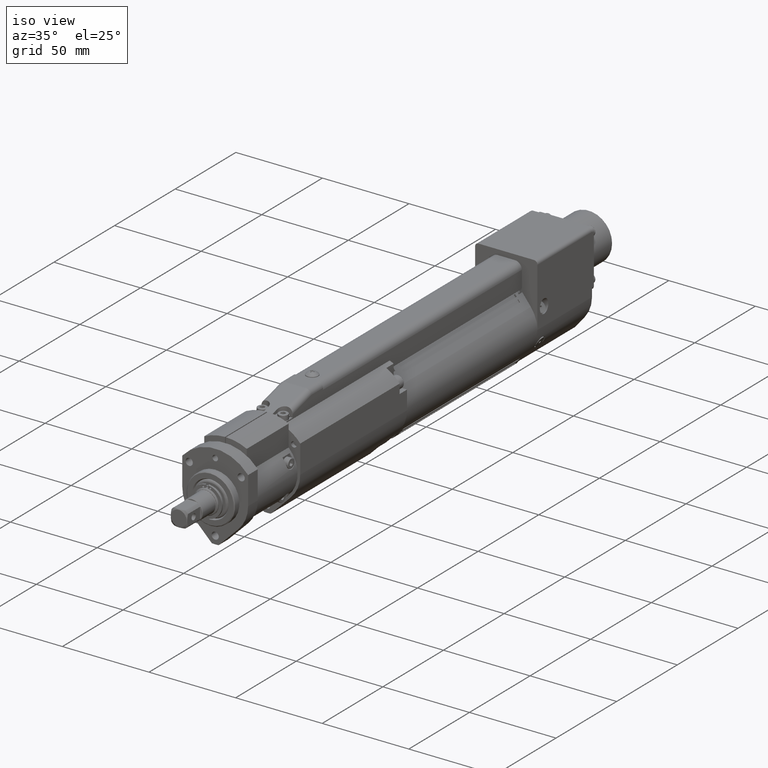
[diagram: clean part render]
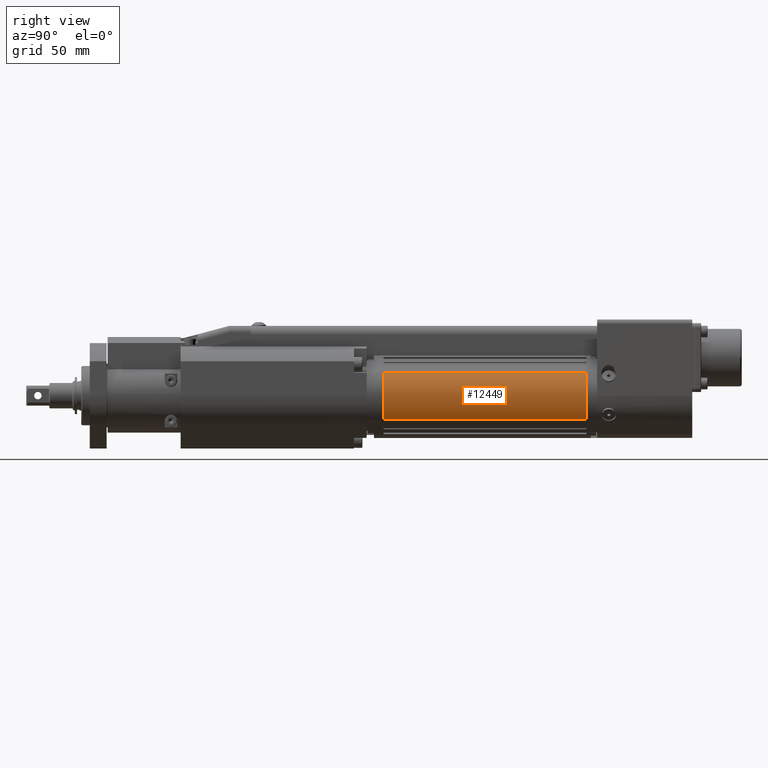
[diagram: tour spotlight — one face highlighted and labeled with its STEP entity id]
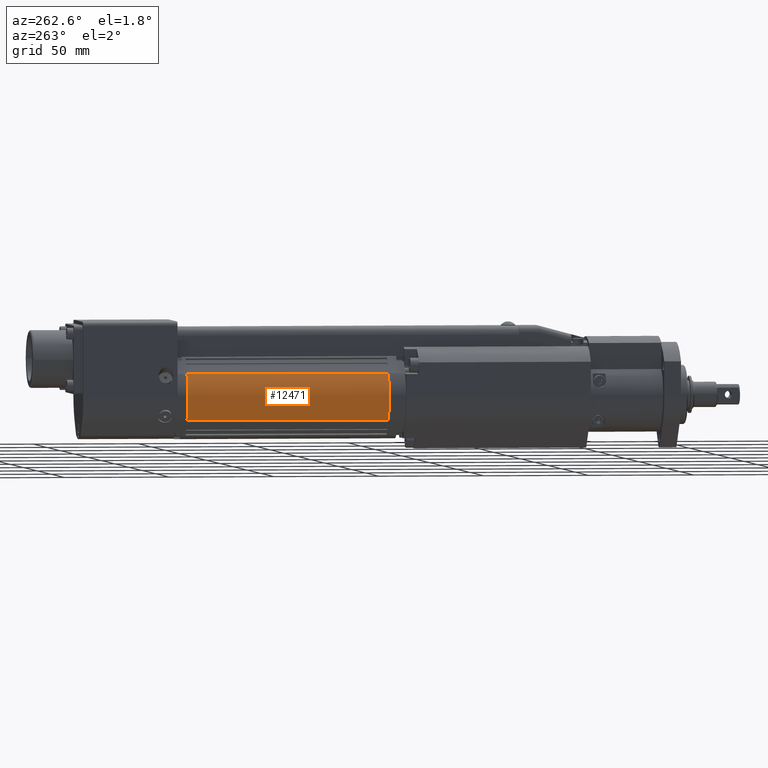
[diagram: tour spotlight — one face highlighted and labeled with its STEP entity id]
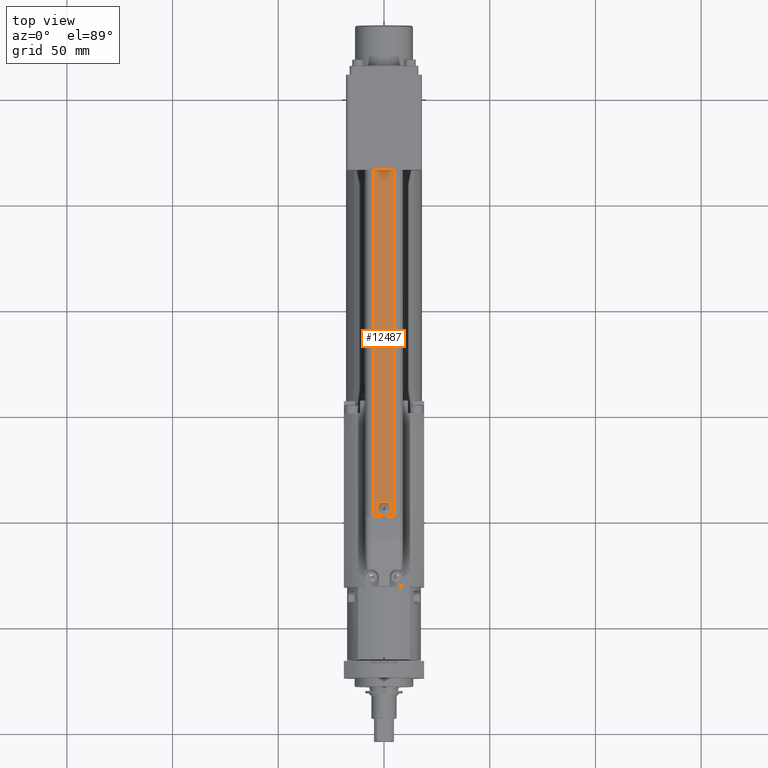
[diagram: tour spotlight — one face highlighted and labeled with its STEP entity id]
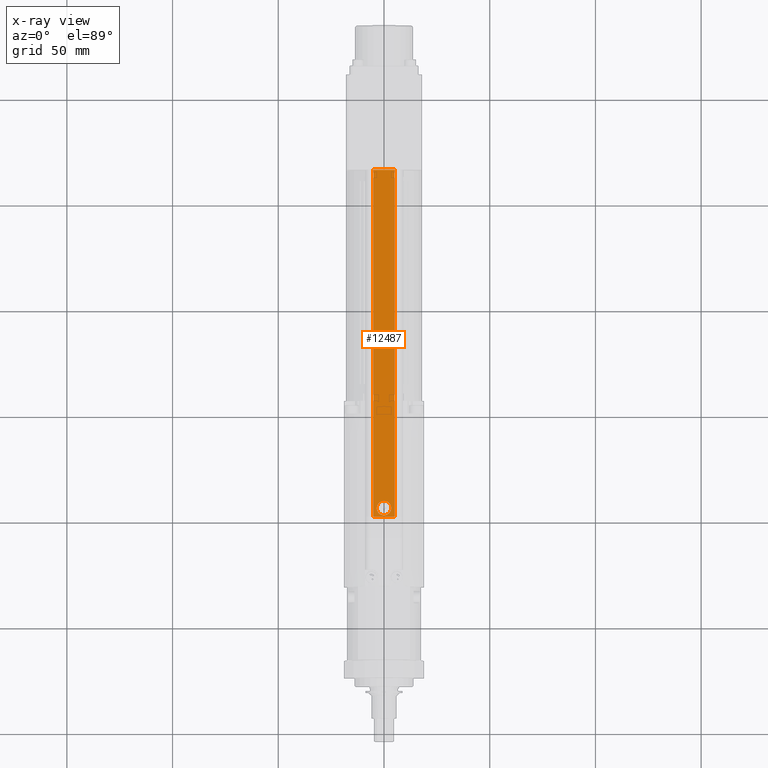
[diagram: x-ray of the same camera — body ghosted, this tour face saturated]
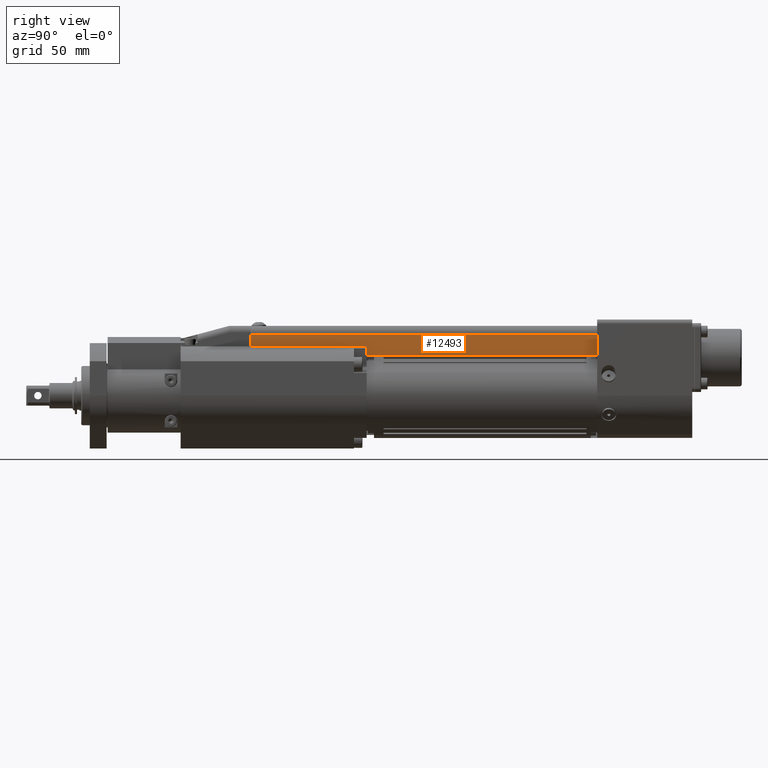
[diagram: tour spotlight — one face highlighted and labeled with its STEP entity id]
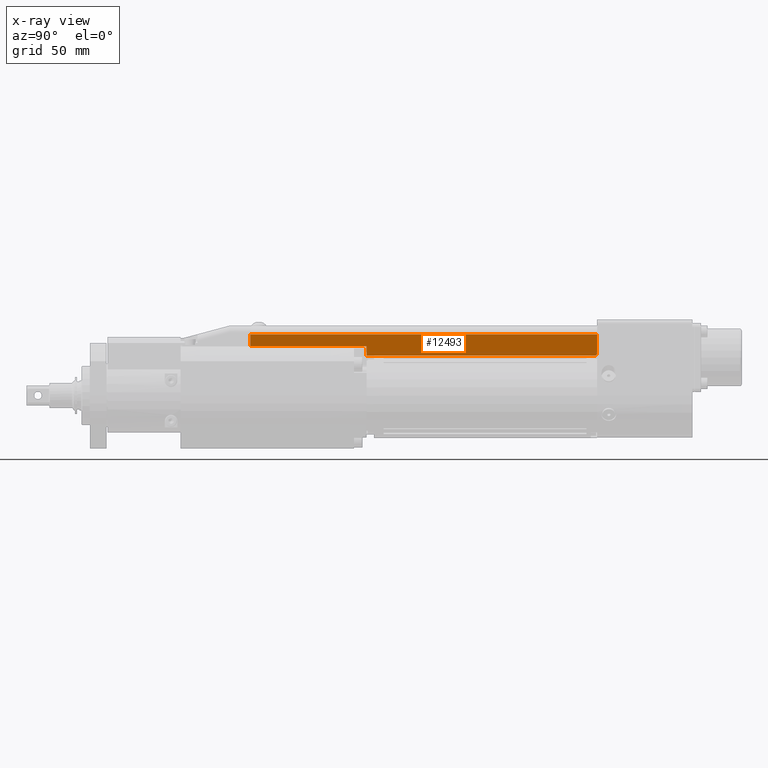
[diagram: x-ray of the same camera — body ghosted, this tour face saturated]
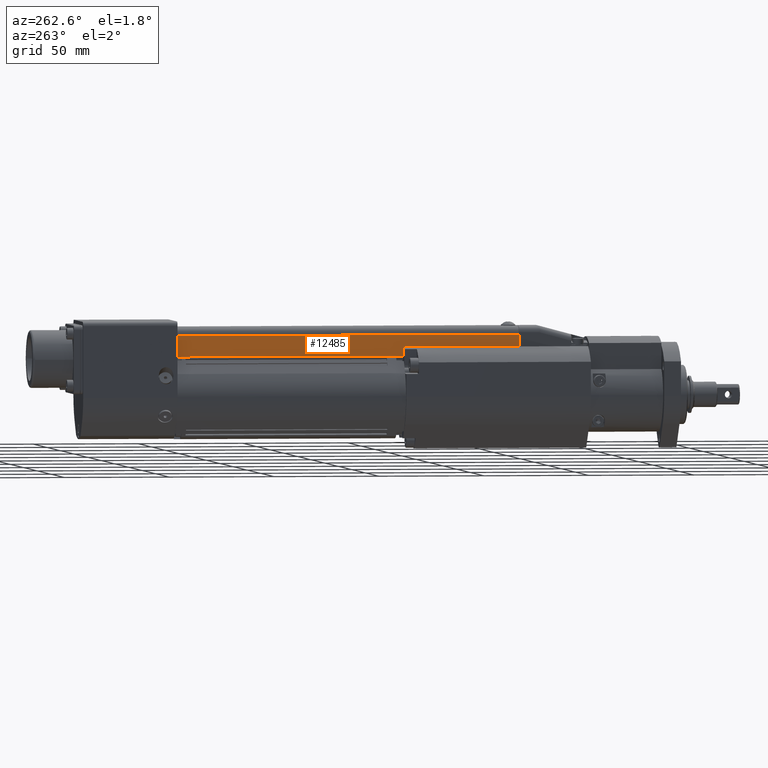
[diagram: tour spotlight — one face highlighted and labeled with its STEP entity id]
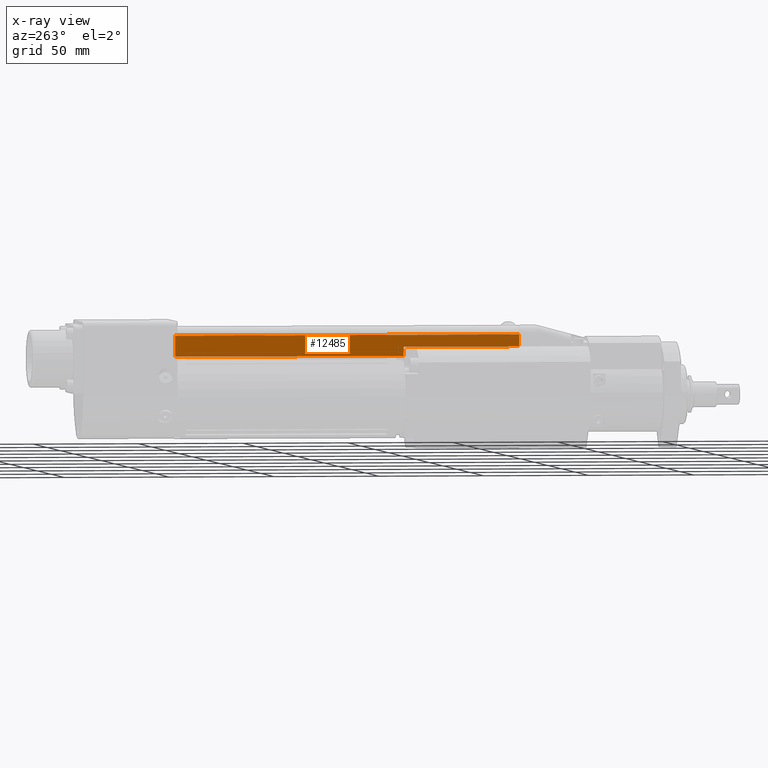
[diagram: x-ray of the same camera — body ghosted, this tour face saturated]
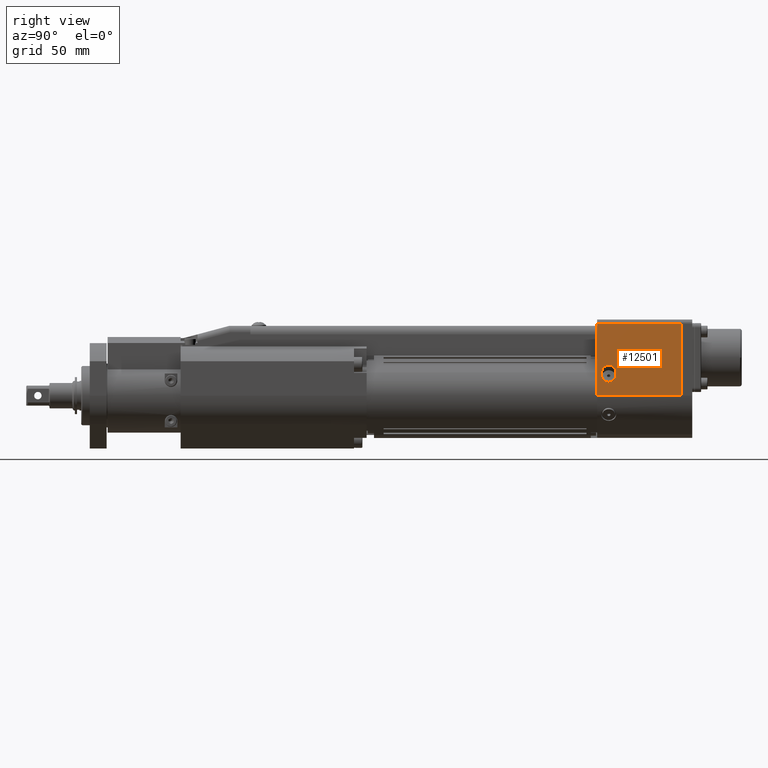
[diagram: tour spotlight — one face highlighted and labeled with its STEP entity id]
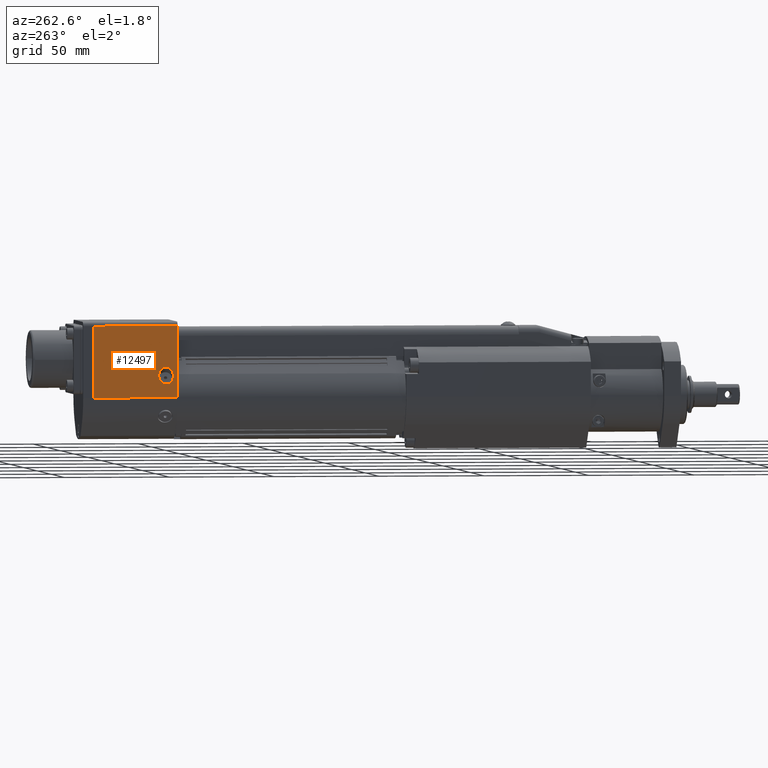
[diagram: tour spotlight — one face highlighted and labeled with its STEP entity id]
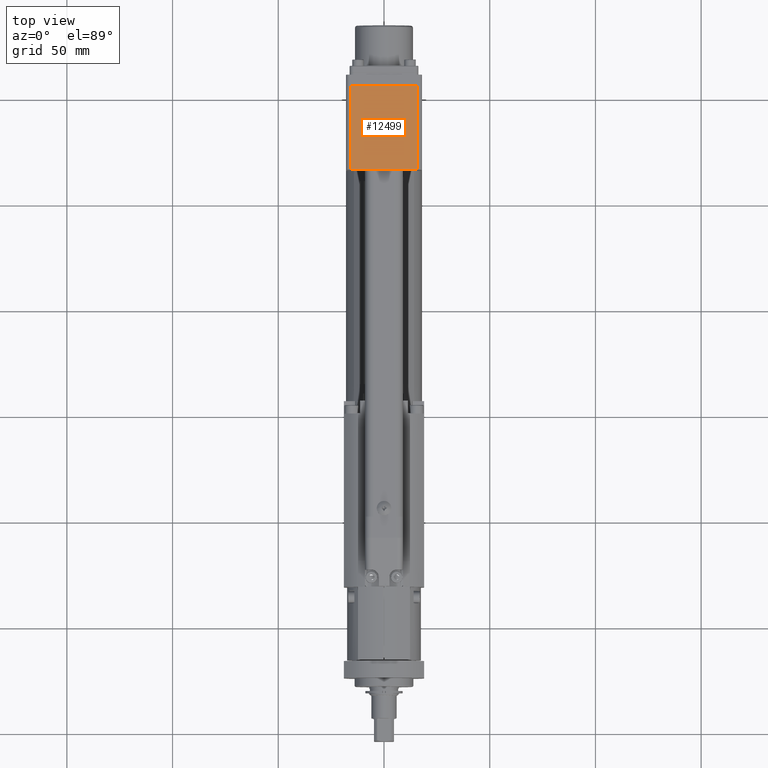
[diagram: tour spotlight — one face highlighted and labeled with its STEP entity id]
A machine part: a face-by-face anatomy tour. The part has 700 B-rep faces; the first image is the clean iso view, then the 8 largest visible faces are spotlighted one at a time (largest first), each with its STEP entity span.

Face 1 — right view, entity #12449. In plain terms, the highlighted cylindrical surface (partial cylindrical patch) has radius 18 mm, axis along (0, 1, -0).
Definition (entity closure, byte-faithful):
#336=CYLINDRICAL_SURFACE('',#13445,17.9999999999914);
#843=FACE_OUTER_BOUND('',#1576,.T.);
#1576=EDGE_LOOP('',(#9147,#9148,#9149,#9150));
#2268=CIRCLE('',#13325,17.9999999999914);
#2299=CIRCLE('',#13409,17.9999999999982);
#3144=LINE('',#20382,#4200);
#3145=LINE('',#20384,#4201);
#4200=VECTOR('',#15842,10.);
#4201=VECTOR('',#15845,10.);
#5202=VERTEX_POINT('',#19986);
#5203=VERTEX_POINT('',#19987);
#5291=VERTEX_POINT('',#20269);
#5296=VERTEX_POINT('',#20282);
#6532=EDGE_CURVE('',#5202,#5203,#2268,.T.);
#6682=EDGE_CURVE('',#5291,#5296,#2299,.T.);
#6730=EDGE_CURVE('',#5291,#5202,#3144,.T.);
#6731=EDGE_CURVE('',#5296,#5203,#3145,.T.);
#9147=ORIENTED_EDGE('',*,*,#6682,.T.);
#9148=ORIENTED_EDGE('',*,*,#6731,.T.);
#9149=ORIENTED_EDGE('',*,*,#6532,.F.);
#9150=ORIENTED_EDGE('',*,*,#6730,.F.);
#12449=ADVANCED_FACE('',(#843),#336,.T.);
#13325=AXIS2_PLACEMENT_3D('',#19988,#15444,#15445);
#13409=AXIS2_PLACEMENT_3D('',#20284,#15731,#15732);
#13445=AXIS2_PLACEMENT_3D('',#20383,#15843,#15844);
#15444=DIRECTION('center_axis',(7.20020279707599E-16,1.,-2.84049013948918E-16));
#15445=DIRECTION('ref_axis',(0.788010753606748,-3.92505688231946E-16,0.615661475325625));
#15731=DIRECTION('center_axis',(7.20020279707599E-16,1.,-2.84049013948918E-16));
#15732=DIRECTION('ref_axis',(0.788010753606715,-3.9250568823191E-16,0.615661475325668));
#15842=DIRECTION('',(7.20020279707599E-16,1.,-2.84049013948918E-16));
#15843=DIRECTION('center_axis',(7.20020279707599E-16,1.,-2.84049013948918E-16));
#15844=DIRECTION('ref_axis',(0.788010753606748,-3.92505688231946E-16,0.615661475325625));
#15845=DIRECTION('',(7.20020279707599E-16,1.,-2.84049013948918E-16));
#19986=CARTESIAN_POINT('',(14.1841935649172,161.,11.0819065558524));
#19987=CARTESIAN_POINT('',(14.1841935649168,161.,-11.0819065558601));
#19988=CARTESIAN_POINT('Origin',(2.47234526998345E-12,161.,-3.60433465971635E-12));
#20269=CARTESIAN_POINT('',(14.1841935647525,64.9999999999999,11.081906556253));
#20282=CARTESIAN_POINT('',(14.1841935647498,64.9999999999999,-11.0819065554722));
#20284=CARTESIAN_POINT('Origin',(-1.66936874176896E-10,64.9999999999999,
3.92119742698324E-10));
#20382=CARTESIAN_POINT('',(14.1841935649171,64.9999999999999,11.0819065558524));
#20383=CARTESIAN_POINT('Origin',(2.40322332313152E-12,64.9999999999999,
-3.57706595437725E-12));
#20384=CARTESIAN_POINT('',(14.1841935649167,64.9999999999999,-11.08190655586));

Face 2 — auxiliary view, entity #12471. In plain terms, the highlighted cylindrical surface (partial cylindrical patch) has radius 18 mm, axis along (0, 1, -0).
Definition (entity closure, byte-faithful):
#340=CYLINDRICAL_SURFACE('',#13467,17.9999999999982);
#865=FACE_OUTER_BOUND('',#1598,.T.);
#1598=EDGE_LOOP('',(#9235,#9236,#9237,#9238));
#2277=CIRCLE('',#13338,17.9999999999982);
#2297=CIRCLE('',#13399,17.9999999999914);
#3166=LINE('',#20426,#4222);
#3167=LINE('',#20428,#4223);
#4222=VECTOR('',#15908,10.);
#4223=VECTOR('',#15911,10.);
#5223=VERTEX_POINT('',#20035);
#5224=VERTEX_POINT('',#20036);
#5277=VERTEX_POINT('',#20225);
#5284=VERTEX_POINT('',#20241);
#6556=EDGE_CURVE('',#5223,#5224,#2277,.T.);
#6661=EDGE_CURVE('',#5277,#5284,#2297,.T.);
#6752=EDGE_CURVE('',#5277,#5223,#3166,.T.);
#6753=EDGE_CURVE('',#5284,#5224,#3167,.T.);
#9235=ORIENTED_EDGE('',*,*,#6661,.T.);
#9236=ORIENTED_EDGE('',*,*,#6753,.T.);
#9237=ORIENTED_EDGE('',*,*,#6556,.F.);
#9238=ORIENTED_EDGE('',*,*,#6752,.F.);
#12471=ADVANCED_FACE('',(#865),#340,.T.);
#13338=AXIS2_PLACEMENT_3D('',#20037,#15485,#15486);
#13399=AXIS2_PLACEMENT_3D('',#20243,#15692,#15693);
#13467=AXIS2_PLACEMENT_3D('',#20427,#15909,#15910);
#15485=DIRECTION('center_axis',(7.20020279707599E-16,1.,-2.84049013948918E-16));
#15486=DIRECTION('ref_axis',(-0.788010753606715,3.92505688231911E-16,-0.615661475325667));
#15692=DIRECTION('center_axis',(7.20020279707599E-16,1.,-2.84049013948918E-16));
#15693=DIRECTION('ref_axis',(-0.788010753606735,3.92505688231932E-16,-0.615661475325642));
#15908=DIRECTION('',(7.20020279707599E-16,1.,-2.84049013948918E-16));
#15909=DIRECTION('center_axis',(7.20020279707599E-16,1.,-2.84049013948918E-16));
#15910=DIRECTION('ref_axis',(-0.788010753606715,3.92505688231911E-16,-0.615661475325667));
#15911=DIRECTION('',(7.20020279707599E-16,1.,-2.84049013948918E-16));
#20035=CARTESIAN_POINT('',(-14.1841935649277,161.,-11.0819065558611));
#20036=CARTESIAN_POINT('',(-14.184193564925,161.,11.0819065558641));
#20037=CARTESIAN_POINT('Origin',(-8.22576379530456E-12,161.,-1.84847743870887E-13));
#20225=CARTESIAN_POINT('',(-14.1841935650919,64.9999999999999,-11.0819065554604));
#20241=CARTESIAN_POINT('',(-14.1841935650919,64.9999999999999,11.081906556252));
#20243=CARTESIAN_POINT('Origin',(-1.77417379529357E-10,64.9999999999999,
3.95823446708473E-10));
#20426=CARTESIAN_POINT('',(-14.1841935649277,64.9999999999999,-11.081906555861));
#20427=CARTESIAN_POINT('Origin',(-8.29488574215649E-12,64.9999999999999,
-1.57579038531793E-13));
#20428=CARTESIAN_POINT('',(-14.1841935649251,64.9999999999999,11.0819065558641));

Face 3 — top view, entity #12487. An x-ray twin of the same camera follows (body ghosted, this face saturated) — the face is partly hidden behind the body. In plain terms, the highlighted planar face has unit normal (-0, 0, 1).
Definition (entity closure, byte-faithful):
#480=FACE_BOUND('',#1615,.T.);
#881=FACE_OUTER_BOUND('',#1614,.T.);
#1614=EDGE_LOOP('',(#9304,#9305,#9306,#9307));
#1615=EDGE_LOOP('',(#9308));
#2194=CIRCLE('',#13126,3.45);
#2714=LINE('',#18314,#3770);
#3181=LINE('',#20461,#4237);
#3182=LINE('',#20464,#4238);
#3183=LINE('',#20465,#4239);
#3770=VECTOR('',#14558,10.);
#4237=VECTOR('',#15957,10.);
#4238=VECTOR('',#15960,10.);
#4239=VECTOR('',#15961,10.);
#4899=VERTEX_POINT('',#18311);
#4900=VERTEX_POINT('',#18313);
#5028=VERTEX_POINT('',#19287);
#5322=VERTEX_POINT('',#20459);
#5323=VERTEX_POINT('',#20463);
#6062=EDGE_CURVE('',#4899,#4900,#2714,.T.);
#6244=EDGE_CURVE('',#5028,#5028,#2194,.T.);
#6768=EDGE_CURVE('',#5322,#4899,#3181,.T.);
#6769=EDGE_CURVE('',#5322,#5323,#3182,.T.);
#6770=EDGE_CURVE('',#5323,#4900,#3183,.T.);
#9304=ORIENTED_EDGE('',*,*,#6769,.T.);
#9305=ORIENTED_EDGE('',*,*,#6770,.T.);
#9306=ORIENTED_EDGE('',*,*,#6062,.F.);
#9307=ORIENTED_EDGE('',*,*,#6768,.F.);
#9308=ORIENTED_EDGE('',*,*,#6244,.T.);
#11239=PLANE('',#13484);
#12487=ADVANCED_FACE('',(#881,#480),#11239,.T.);
#13126=AXIS2_PLACEMENT_3D('',#19288,#14857,#14858);
#13484=AXIS2_PLACEMENT_3D('',#20462,#15958,#15959);
#14558=DIRECTION('',(1.,-6.89986709772563E-16,4.33873497871556E-30));
#14857=DIRECTION('center_axis',(1.77493703674728E-30,-3.98999394435586E-15,
-1.));
#14858=DIRECTION('ref_axis',(1.,-6.14759817044665E-16,2.01835602244937E-30));
#15957=DIRECTION('',(6.89986709772563E-16,1.,-3.98999394435586E-15));
#15958=DIRECTION('center_axis',(-1.77493703674728E-30,3.98999394435586E-15,
1.));
#15959=DIRECTION('ref_axis',(1.,-6.89986709772563E-16,4.33873497871556E-30));
#15960=DIRECTION('',(1.,-6.89986709772563E-16,4.33873497871556E-30));
#15961=DIRECTION('',(6.89986709772563E-16,1.,-3.98999394435586E-15));
#18311=CARTESIAN_POINT('',(-5.00000000000007,166.,32.9999999999993));
#18313=CARTESIAN_POINT('',(4.99999999999993,166.,32.9999999999993));
#18314=CARTESIAN_POINT('',(-5.00000000000007,166.,32.9999999999993));
#19287=CARTESIAN_POINT('',(-3.45000000000024,5.99999999999994,32.9999999999999));
#19288=CARTESIAN_POINT('Origin',(-2.36738561693249E-13,5.99999999999994,
33.));
#20459=CARTESIAN_POINT('',(-5.00000000000018,1.99999999999994,33.));
#20461=CARTESIAN_POINT('',(-5.00000000000018,1.99999999999994,33.));
#20462=CARTESIAN_POINT('Origin',(-5.00000000000018,1.99999999999994,33.));
#20463=CARTESIAN_POINT('',(4.99999999999982,1.99999999999994,33.));
#20464=CARTESIAN_POINT('',(-5.00000000000018,1.99999999999994,33.));
#20465=CARTESIAN_POINT('',(4.99999999999982,1.99999999999994,33.));

Face 4 — right view, entity #12493. An x-ray twin of the same camera follows (body ghosted, this face saturated) — the face is partly hidden behind the body. In plain terms, the highlighted planar face has unit normal (1, -0, 0).
Definition (entity closure, byte-faithful):
#887=FACE_OUTER_BOUND('',#1621,.T.);
#1621=EDGE_LOOP('',(#9329,#9330,#9331,#9332,#9333,#9334,#9335,#9336));
#2560=LINE('',#17626,#3616);
#2715=LINE('',#18318,#3771);
#2950=LINE('',#19898,#4006);
#2964=LINE('',#19924,#4020);
#3184=LINE('',#20469,#4240);
#3187=LINE('',#20477,#4243);
#3189=LINE('',#20480,#4245);
#3191=LINE('',#20483,#4247);
#3616=VECTOR('',#14120,10.);
#3771=VECTOR('',#14561,10.);
#4006=VECTOR('',#15340,10.);
#4020=VECTOR('',#15368,10.);
#4240=VECTOR('',#15966,10.);
#4243=VECTOR('',#15975,10.);
#4245=VECTOR('',#15979,10.);
#4247=VECTOR('',#15983,10.);
#4680=VERTEX_POINT('',#17623);
#4681=VERTEX_POINT('',#17625);
#4901=VERTEX_POINT('',#18315);
#4902=VERTEX_POINT('',#18317);
#5182=VERTEX_POINT('',#19895);
#5183=VERTEX_POINT('',#19897);
#5324=VERTEX_POINT('',#20467);
#5325=VERTEX_POINT('',#20474);
#5802=EDGE_CURVE('',#4681,#4680,#2560,.T.);
#6064=EDGE_CURVE('',#4901,#4902,#2715,.T.);
#6485=EDGE_CURVE('',#5183,#5182,#2950,.T.);
#6500=EDGE_CURVE('',#4681,#5182,#2964,.T.);
#6772=EDGE_CURVE('',#5324,#4901,#3184,.T.);
#6775=EDGE_CURVE('',#4680,#5325,#3187,.T.);
#6777=EDGE_CURVE('',#4902,#5325,#3189,.T.);
#6779=EDGE_CURVE('',#5324,#5183,#3191,.T.);
#9329=ORIENTED_EDGE('',*,*,#6485,.T.);
#9330=ORIENTED_EDGE('',*,*,#6500,.F.);
#9331=ORIENTED_EDGE('',*,*,#5802,.T.);
#9332=ORIENTED_EDGE('',*,*,#6775,.T.);
#9333=ORIENTED_EDGE('',*,*,#6777,.F.);
#9334=ORIENTED_EDGE('',*,*,#6064,.F.);
#9335=ORIENTED_EDGE('',*,*,#6772,.F.);
#9336=ORIENTED_EDGE('',*,*,#6779,.T.);
#11244=PLANE('',#13491);
#12493=ADVANCED_FACE('',(#887),#11244,.T.);
#13491=AXIS2_PLACEMENT_3D('',#20482,#15981,#15982);
#14120=DIRECTION('',(1.986570399457E-15,-2.84049013948923E-16,-1.));
#14561=DIRECTION('',(1.8735446498999E-30,-3.98999394435586E-15,-1.));
#15340=DIRECTION('',(7.21644966006352E-16,1.,-2.84049013948921E-16));
#15368=DIRECTION('',(-7.21644966006352E-16,-1.,2.84049013948921E-16));
#15966=DIRECTION('',(6.89986709772563E-16,1.,-3.98999394435586E-15));
#15975=DIRECTION('',(6.89986709772563E-16,1.,-3.98999394435586E-15));
#15979=DIRECTION('',(-4.87894281408776E-16,-0.707106781186555,-0.70710678118654));
#15981=DIRECTION('center_axis',(1.,-6.89986709772563E-16,4.43734259186819E-30));
#15982=DIRECTION('ref_axis',(1.8735446498999E-30,-3.98999394435586E-15,
-1.));
#15983=DIRECTION('',(1.8735446498999E-30,-3.98999394435586E-15,-1.));
#17623=CARTESIAN_POINT('',(8.99999999999986,56.9999999999999,18.9999999999998));
#17625=CARTESIAN_POINT('',(8.99999999999992,57.,23.3238075793813));
#17626=CARTESIAN_POINT('',(8.99999999999992,57.,23.3238075793813));
#18315=CARTESIAN_POINT('',(8.99999999999993,166.,28.9999999999993));
#18317=CARTESIAN_POINT('',(8.99999999999993,166.,19.4999999999993));
#18318=CARTESIAN_POINT('',(8.99999999999993,166.,28.9999999999993));
#19895=CARTESIAN_POINT('',(9.00000000000002,40.,23.3238075793812));
#19897=CARTESIAN_POINT('',(8.99999999999982,1.99999999999989,23.3238075793813));
#19898=CARTESIAN_POINT('',(9.,1.30299850400445E-16,23.3238075793812));
#19924=CARTESIAN_POINT('',(8.99999999999992,57.,23.3238075793813));
#20467=CARTESIAN_POINT('',(8.99999999999982,1.99999999999992,29.));
#20469=CARTESIAN_POINT('',(8.99999999999982,1.99999999999992,29.));
#20474=CARTESIAN_POINT('',(8.99999999999993,165.5,18.9999999999993));
#20477=CARTESIAN_POINT('',(8.99999999999982,1.99999999999988,19.));
#20480=CARTESIAN_POINT('',(8.99999999999991,127.249999999999,-19.2500000000006));
#20482=CARTESIAN_POINT('Origin',(8.99999999999982,1.99999999999992,29.));
#20483=CARTESIAN_POINT('',(8.99999999999982,1.99999999999992,29.));

Face 5 — auxiliary view, entity #12485. An x-ray twin of the same camera follows (body ghosted, this face saturated) — the face is partly hidden behind the body. In plain terms, the highlighted planar face has unit normal (-1, 0, -0).
Definition (entity closure, byte-faithful):
#879=FACE_OUTER_BOUND('',#1612,.T.);
#1612=EDGE_LOOP('',(#9292,#9293,#9294,#9295,#9296,#9297,#9298,#9299));
#2713=LINE('',#18310,#3769);
#2733=LINE('',#18373,#3789);
#2948=LINE('',#19887,#4004);
#2981=LINE('',#19968,#4037);
#3177=LINE('',#20453,#4233);
#3178=LINE('',#20454,#4234);
#3179=LINE('',#20456,#4235);
#3180=LINE('',#20457,#4236);
#3769=VECTOR('',#14555,10.);
#3789=VECTOR('',#14607,10.);
#4004=VECTOR('',#15330,10.);
#4037=VECTOR('',#15421,10.);
#4233=VECTOR('',#15949,10.);
#4234=VECTOR('',#15950,10.);
#4235=VECTOR('',#15951,10.);
#4236=VECTOR('',#15952,10.);
#4897=VERTEX_POINT('',#18307);
#4898=VERTEX_POINT('',#18309);
#4924=VERTEX_POINT('',#18370);
#4925=VERTEX_POINT('',#18372);
#5177=VERTEX_POINT('',#19884);
#5178=VERTEX_POINT('',#19886);
#5320=VERTEX_POINT('',#20452);
#5321=VERTEX_POINT('',#20455);
#6060=EDGE_CURVE('',#4897,#4898,#2713,.T.);
#6092=EDGE_CURVE('',#4924,#4925,#2733,.T.);
#6480=EDGE_CURVE('',#5177,#5178,#2948,.T.);
#6523=EDGE_CURVE('',#4924,#5178,#2981,.T.);
#6763=EDGE_CURVE('',#5177,#5320,#3177,.T.);
#6764=EDGE_CURVE('',#5320,#4898,#3178,.T.);
#6765=EDGE_CURVE('',#5321,#4897,#3179,.T.);
#6766=EDGE_CURVE('',#4925,#5321,#3180,.T.);
#9292=ORIENTED_EDGE('',*,*,#6480,.F.);
#9293=ORIENTED_EDGE('',*,*,#6763,.T.);
#9294=ORIENTED_EDGE('',*,*,#6764,.T.);
#9295=ORIENTED_EDGE('',*,*,#6060,.F.);
#9296=ORIENTED_EDGE('',*,*,#6765,.F.);
#9297=ORIENTED_EDGE('',*,*,#6766,.F.);
#9298=ORIENTED_EDGE('',*,*,#6092,.F.);
#9299=ORIENTED_EDGE('',*,*,#6523,.T.);
#11238=PLANE('',#13481);
#12485=ADVANCED_FACE('',(#879),#11238,.T.);
#13481=AXIS2_PLACEMENT_3D('',#20451,#15947,#15948);
#14555=DIRECTION('',(-4.44089209850065E-16,3.98999394435586E-15,1.));
#14607=DIRECTION('',(4.44089209850067E-16,-2.84049013948922E-16,-1.));
#15330=DIRECTION('',(7.21644966006352E-16,1.,-2.84049013948921E-16));
#15421=DIRECTION('',(-7.21644966006352E-16,-1.,2.84049013948921E-16));
#15947=DIRECTION('center_axis',(-1.,6.89986709772561E-16,-4.44089209850067E-16));
#15948=DIRECTION('ref_axis',(-4.44089209850065E-16,3.98999394435586E-15,
1.));
#15949=DIRECTION('',(-4.44089209850065E-16,3.98999394435586E-15,1.));
#15950=DIRECTION('',(6.89986709772563E-16,1.,-3.98999394435586E-15));
#15951=DIRECTION('',(1.73875789672023E-16,0.707106781186555,0.70710678118654));
#15952=DIRECTION('',(6.89986709772563E-16,1.,-3.98999394435586E-15));
#18307=CARTESIAN_POINT('',(-9.00000000000006,166.,19.4999999999993));
#18309=CARTESIAN_POINT('',(-9.00000000000007,166.,28.9999999999993));
#18310=CARTESIAN_POINT('',(-9.00000000000006,166.,18.9999999999993));
#18370=CARTESIAN_POINT('',(-9.00000000000008,57.,23.3238075793813));
#18372=CARTESIAN_POINT('',(-9.00000000000014,56.9999999999999,18.9999999999998));
#18373=CARTESIAN_POINT('',(-9.00000000000014,57.,10.5082482056706));
#19884=CARTESIAN_POINT('',(-9.00000000000018,1.99999999999991,23.3238075793811));
#19886=CARTESIAN_POINT('',(-8.99999999999998,40.,23.3238075793812));
#19887=CARTESIAN_POINT('',(-9.00000000000001,1.31199092385148E-14,23.3238075793812));
#19968=CARTESIAN_POINT('',(-9.00000000000008,57.,23.3238075793813));
#20451=CARTESIAN_POINT('Origin',(-9.00000000000018,1.99999999999989,19.));
#20452=CARTESIAN_POINT('',(-9.00000000000018,1.99999999999993,29.));
#20453=CARTESIAN_POINT('',(-9.00000000000018,1.99999999999989,19.));
#20454=CARTESIAN_POINT('',(-9.00000000000018,1.99999999999993,29.));
#20455=CARTESIAN_POINT('',(-9.00000000000006,165.5,18.9999999999993));
#20456=CARTESIAN_POINT('',(-9.00000000000007,124.749999999999,-21.7500000000005));
#20457=CARTESIAN_POINT('',(-9.00000000000018,1.99999999999989,19.));

Face 6 — right view, entity #12501. In plain terms, the highlighted planar face has unit normal (1, -0, 0).
Definition (entity closure, byte-faithful):
#162=ELLIPSE('',#13506,4.04145188432738,3.5);
#482=FACE_BOUND('',#1631,.T.);
#895=FACE_OUTER_BOUND('',#1630,.T.);
#1630=EDGE_LOOP('',(#9366,#9367,#9368,#9369));
#1631=EDGE_LOOP('',(#9370));
#2721=LINE('',#18333,#3777);
#3199=LINE('',#20510,#4255);
#3200=LINE('',#20514,#4256);
#3201=LINE('',#20515,#4257);
#3777=VECTOR('',#14571,10.);
#4255=VECTOR('',#16015,10.);
#4256=VECTOR('',#16020,10.);
#4257=VECTOR('',#16021,10.);
#4908=VERTEX_POINT('',#18330);
#4909=VERTEX_POINT('',#18332);
#5333=VERTEX_POINT('',#20509);
#5334=VERTEX_POINT('',#20513);
#5335=VERTEX_POINT('',#20516);
#6072=EDGE_CURVE('',#4908,#4909,#2721,.T.);
#6792=EDGE_CURVE('',#4909,#5333,#3199,.T.);
#6794=EDGE_CURVE('',#4908,#5334,#3200,.T.);
#6795=EDGE_CURVE('',#5333,#5334,#3201,.T.);
#6796=EDGE_CURVE('',#5335,#5335,#162,.T.);
#9366=ORIENTED_EDGE('',*,*,#6072,.F.);
#9367=ORIENTED_EDGE('',*,*,#6794,.T.);
#9368=ORIENTED_EDGE('',*,*,#6795,.F.);
#9369=ORIENTED_EDGE('',*,*,#6792,.F.);
#9370=ORIENTED_EDGE('',*,*,#6796,.T.);
#11250=PLANE('',#13505);
#12501=ADVANCED_FACE('',(#895,#482),#11250,.T.);
#13505=AXIS2_PLACEMENT_3D('',#20512,#16018,#16019);
#13506=AXIS2_PLACEMENT_3D('',#20517,#16022,#16023);
#14571=DIRECTION('',(-1.22464679914735E-16,2.8404901394892E-16,1.));
#16015=DIRECTION('',(6.89986709772563E-16,1.,-2.8404901394892E-16));
#16018=DIRECTION('center_axis',(1.,-6.89986709772563E-16,1.22464679914735E-16));
#16019=DIRECTION('ref_axis',(1.22464679914735E-16,-2.8404901394892E-16,
-1.));
#16020=DIRECTION('',(6.89986709772563E-16,1.,-2.8404901394892E-16));
#16021=DIRECTION('',(1.22464679914735E-16,-2.8404901394892E-16,-1.));
#16022=DIRECTION('center_axis',(-1.,6.89986709772563E-16,-1.22464679914735E-16));
#16023=DIRECTION('ref_axis',(1.22464679914735E-16,-2.8404901394892E-16,
-1.));
#18330=CARTESIAN_POINT('',(18.0000000000525,166.000000000003,5.67536601045388E-11));
#18332=CARTESIAN_POINT('',(18.0000000000525,166.000000000003,34.0000000000568));
#18333=CARTESIAN_POINT('',(18.0000000000525,166.000000000003,5.67536601045388E-11));
#20509=CARTESIAN_POINT('',(18.0000000000525,206.000000000003,34.0000000000567));
#20510=CARTESIAN_POINT('',(18.0000000000525,166.000000000003,34.0000000000568));
#20512=CARTESIAN_POINT('Origin',(18.0000000000525,166.000000000003,34.0000000000568));
#20513=CARTESIAN_POINT('',(18.0000000000525,206.000000000003,5.67422981439809E-11));
#20514=CARTESIAN_POINT('',(18.0000000000525,166.000000000003,5.67536601045388E-11));
#20515=CARTESIAN_POINT('',(18.0000000000525,206.000000000003,5.67422981439809E-11));
#20516=CARTESIAN_POINT('',(18.0000000000525,171.500000000003,14.4337567298499));
#20517=CARTESIAN_POINT('Origin',(18.0000000000525,171.500000000003,10.3923048455225));

Face 7 — auxiliary view, entity #12497. In plain terms, the highlighted planar face has unit normal (-1, 0, -0).
Definition (entity closure, byte-faithful):
#161=ELLIPSE('',#13499,4.04145188432738,3.5);
#481=FACE_BOUND('',#1626,.T.);
#891=FACE_OUTER_BOUND('',#1625,.T.);
#1625=EDGE_LOOP('',(#9349,#9350,#9351,#9352));
#1626=EDGE_LOOP('',(#9353));
#2723=LINE('',#18341,#3779);
#3193=LINE('',#20494,#4249);
#3194=LINE('',#20496,#4250);
#3195=LINE('',#20497,#4251);
#3779=VECTOR('',#14577,10.);
#4249=VECTOR('',#15999,10.);
#4250=VECTOR('',#16000,10.);
#4251=VECTOR('',#16001,10.);
#4912=VERTEX_POINT('',#18338);
#4913=VERTEX_POINT('',#18340);
#5328=VERTEX_POINT('',#20493);
#5329=VERTEX_POINT('',#20495);
#5330=VERTEX_POINT('',#20498);
#6076=EDGE_CURVE('',#4912,#4913,#2723,.T.);
#6784=EDGE_CURVE('',#4912,#5328,#3193,.T.);
#6785=EDGE_CURVE('',#5329,#5328,#3194,.T.);
#6786=EDGE_CURVE('',#4913,#5329,#3195,.T.);
#6787=EDGE_CURVE('',#5330,#5330,#161,.T.);
#9349=ORIENTED_EDGE('',*,*,#6076,.F.);
#9350=ORIENTED_EDGE('',*,*,#6784,.T.);
#9351=ORIENTED_EDGE('',*,*,#6785,.F.);
#9352=ORIENTED_EDGE('',*,*,#6786,.F.);
#9353=ORIENTED_EDGE('',*,*,#6787,.T.);
#11248=PLANE('',#13498);
#12497=ADVANCED_FACE('',(#891,#481),#11248,.T.);
#13498=AXIS2_PLACEMENT_3D('',#20492,#15997,#15998);
#13499=AXIS2_PLACEMENT_3D('',#20499,#16002,#16003);
#14577=DIRECTION('',(1.22464679914735E-16,-2.8404901394892E-16,-1.));
#15997=DIRECTION('center_axis',(-1.,6.89986709772563E-16,-1.22464679914735E-16));
#15998=DIRECTION('ref_axis',(-1.22464679914735E-16,2.8404901394892E-16,
1.));
#15999=DIRECTION('',(6.89986709772563E-16,1.,-2.8404901394892E-16));
#16000=DIRECTION('',(-1.22464679914735E-16,2.8404901394892E-16,1.));
#16001=DIRECTION('',(6.89986709772563E-16,1.,-2.8404901394892E-16));
#16002=DIRECTION('center_axis',(1.,-6.89986709772563E-16,1.22464679914735E-16));
#16003=DIRECTION('ref_axis',(1.22464679914735E-16,-2.8404901394892E-16,
-1.));
#18338=CARTESIAN_POINT('',(-17.9999999999348,166.000000000003,34.0000000000568));
#18340=CARTESIAN_POINT('',(-17.9999999999348,166.000000000003,5.44755146216296E-11));
#18341=CARTESIAN_POINT('',(-17.9999999999348,166.000000000003,34.0000000000568));
#20492=CARTESIAN_POINT('Origin',(-17.9999999999348,166.000000000003,5.44755146216296E-11));
#20493=CARTESIAN_POINT('',(-17.9999999999348,206.000000000003,34.0000000000567));
#20494=CARTESIAN_POINT('',(-17.9999999999348,166.000000000003,34.0000000000568));
#20495=CARTESIAN_POINT('',(-17.9999999999348,206.000000000003,5.44641526610716E-11));
#20496=CARTESIAN_POINT('',(-17.9999999999348,206.000000000003,34.0000000000567));
#20497=CARTESIAN_POINT('',(-17.9999999999348,166.000000000003,5.44755146216296E-11));
#20498=CARTESIAN_POINT('',(-17.9999999999348,171.500000000003,14.4337567298499));
#20499=CARTESIAN_POINT('Origin',(-17.9999999999348,171.500000000003,10.3923048455225));

Face 8 — top view, entity #12499. In plain terms, the highlighted planar face has unit normal (-0, 0, 1).
Definition (entity closure, byte-faithful):
#893=FACE_OUTER_BOUND('',#1628,.T.);
#1628=EDGE_LOOP('',(#9358,#9359,#9360,#9361));
#2722=LINE('',#18337,#3778);
#3196=LINE('',#20502,#4252);
#3197=LINE('',#20506,#4253);
#3198=LINE('',#20507,#4254);
#3778=VECTOR('',#14574,10.);
#4252=VECTOR('',#16006,10.);
#4253=VECTOR('',#16011,10.);
#4254=VECTOR('',#16012,10.);
#4910=VERTEX_POINT('',#18334);
#4911=VERTEX_POINT('',#18336);
#5331=VERTEX_POINT('',#20501);
#5332=VERTEX_POINT('',#20505);
#6074=EDGE_CURVE('',#4910,#4911,#2722,.T.);
#6788=EDGE_CURVE('',#4911,#5331,#3196,.T.);
#6790=EDGE_CURVE('',#4910,#5332,#3197,.T.);
#6791=EDGE_CURVE('',#5331,#5332,#3198,.T.);
#9358=ORIENTED_EDGE('',*,*,#6074,.F.);
#9359=ORIENTED_EDGE('',*,*,#6790,.T.);
#9360=ORIENTED_EDGE('',*,*,#6791,.F.);
#9361=ORIENTED_EDGE('',*,*,#6788,.F.);
#11249=PLANE('',#13502);
#12499=ADVANCED_FACE('',(#893),#11249,.T.);
#13502=AXIS2_PLACEMENT_3D('',#20504,#16009,#16010);
#14574=DIRECTION('',(-1.,6.89986709772563E-16,-1.22464679914735E-16));
#16006=DIRECTION('',(6.89986709772563E-16,1.,-2.8404901394892E-16));
#16009=DIRECTION('center_axis',(-1.22464679914735E-16,2.8404901394892E-16,
1.));
#16010=DIRECTION('ref_axis',(1.,-6.89986709772563E-16,1.22464679914735E-16));
#16011=DIRECTION('',(6.89986709772563E-16,1.,-2.8404901394892E-16));
#16012=DIRECTION('',(1.,-6.89986709772563E-16,1.22464679914735E-16));
#18334=CARTESIAN_POINT('',(16.0000000000525,166.000000000003,36.0000000000568));
#18336=CARTESIAN_POINT('',(-15.9999999999348,166.000000000003,36.0000000000568));
#18337=CARTESIAN_POINT('',(16.0000000000525,166.000000000003,36.0000000000568));
#20501=CARTESIAN_POINT('',(-15.9999999999348,206.000000000003,36.0000000000567));
#20502=CARTESIAN_POINT('',(-15.9999999999348,166.000000000003,36.0000000000568));
#20504=CARTESIAN_POINT('Origin',(-15.9999999999348,166.000000000003,36.0000000000568));
#20505=CARTESIAN_POINT('',(16.0000000000525,206.000000000003,36.0000000000567));
#20506=CARTESIAN_POINT('',(16.0000000000525,166.000000000003,36.0000000000568));
#20507=CARTESIAN_POINT('',(16.0000000000525,206.000000000003,36.0000000000567));